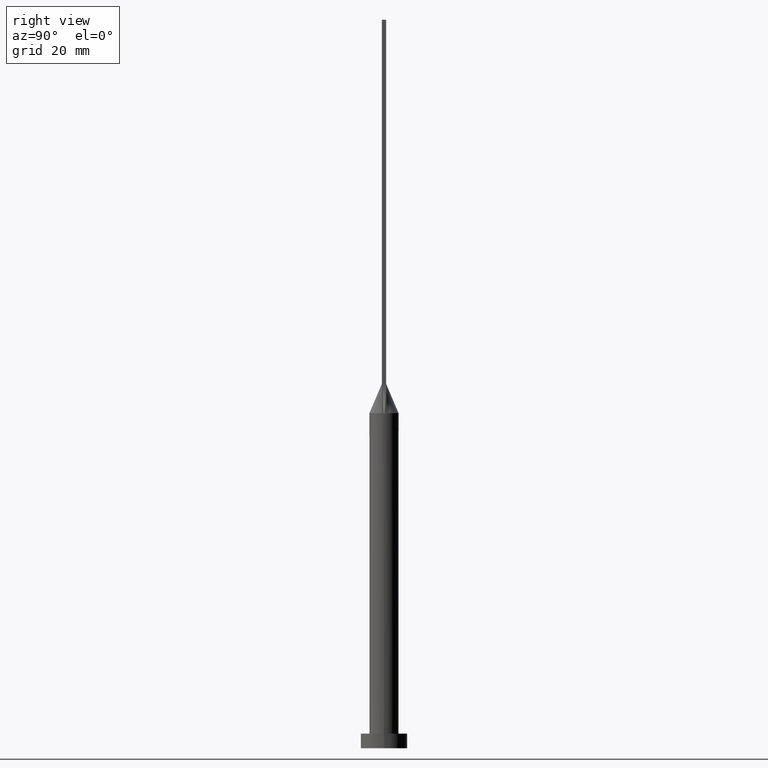
[diagram: clean part render]
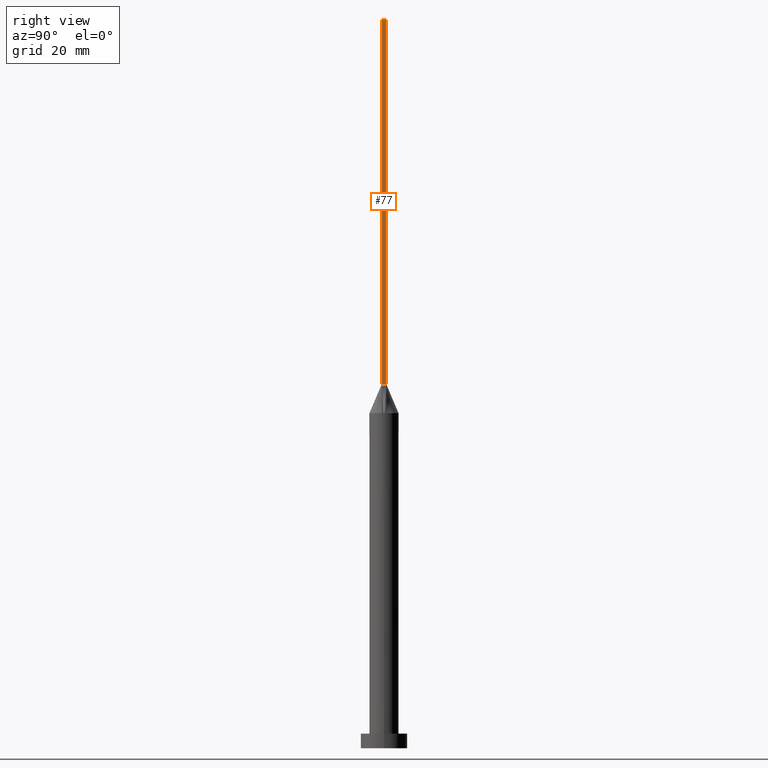
[diagram: same view with one face highlighted and labeled with its STEP entity id]
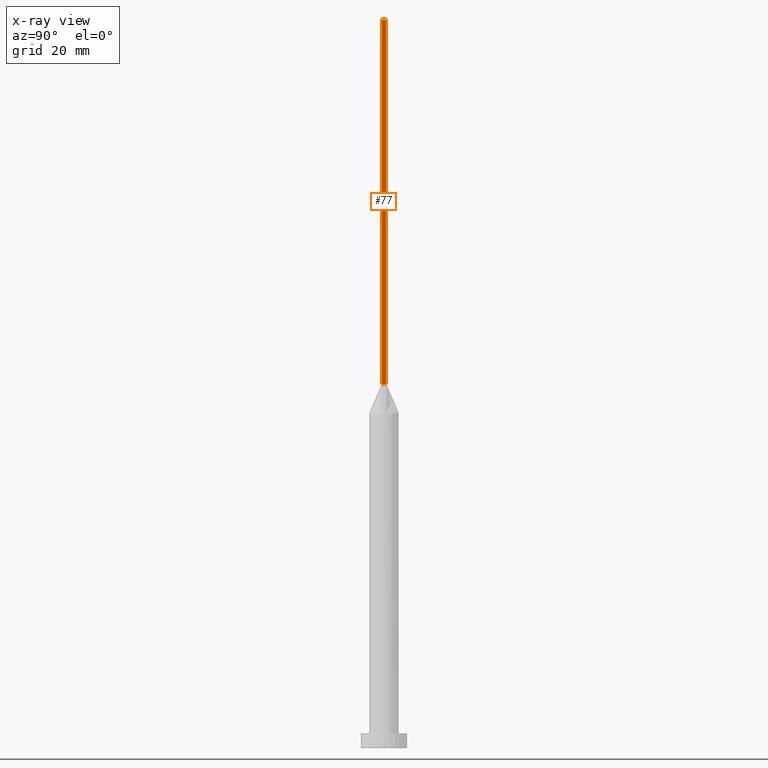
[diagram: x-ray of the same camera — body ghosted, the highlighted face saturated]
A machine part, right view. The second image highlights one B-rep face of the part: STEP entity #77.
The next image is the same camera in x-ray: the body ghosted, the highlighted face saturated — about 0% of this face is hidden behind the body in this view.
In plain terms, the highlighted planar face has unit normal (-1, 0, 0).
Its self-contained STEP definition (entity closure, byte-faithful):
#13 = ORIENTED_EDGE ( 'NONE', *, *, #565, .T. ) ;
#47 = CARTESIAN_POINT ( 'NONE',  ( 4.750000000000000000, -0.7499999999999997780, 250.0000000000000000 ) ) ;
#59 = EDGE_CURVE ( 'NONE', #584, #515, #524, .T. ) ;
#61 = VECTOR ( 'NONE', #245, 1000.000000000000000 ) ;
#77 = ADVANCED_FACE ( 'NONE', ( #334 ), #525, .F. ) ;
#79 = CARTESIAN_POINT ( 'NONE',  ( 4.750000000000000000, 0.7500000000000002220, 250.0000000000000000 ) ) ;
#81 = CARTESIAN_POINT ( 'NONE',  ( 4.750000000000000000, -0.7499999999999997780, 250.0000000000000000 ) ) ;
#101 = CARTESIAN_POINT ( 'NONE',  ( 4.750000000000000000, -0.7499999999999997780, 250.0000000000000000 ) ) ;
#177 = EDGE_CURVE ( 'NONE', #578, #584, #485, .T. ) ;
#195 = ORIENTED_EDGE ( 'NONE', *, *, #177, .F. ) ;
#200 = LINE ( 'NONE', #47, #61 ) ;
#240 = ORIENTED_EDGE ( 'NONE', *, *, #486, .T. ) ;
#245 = DIRECTION ( 'NONE',  ( -0.000000000000000000, -0.000000000000000000, -1.000000000000000000 ) ) ;
#259 = CARTESIAN_POINT ( 'NONE',  ( 4.750000000000000000, 0.7500000000000002220, 125.0000000000000000 ) ) ;
#278 = VECTOR ( 'NONE', #540, 1000.000000000000000 ) ;
#280 = DIRECTION ( 'NONE',  ( -0.000000000000000000, -0.000000000000000000, -1.000000000000000000 ) ) ;
#285 = DIRECTION ( 'NONE',  ( 0.000000000000000000, 0.000000000000000000, 1.000000000000000000 ) ) ;
#295 = LINE ( 'NONE', #259, #307 ) ;
#307 = VECTOR ( 'NONE', #438, 1000.000000000000000 ) ;
#313 = CARTESIAN_POINT ( 'NONE',  ( 4.750000000000000000, -0.7499999999999997780, 250.0000000000000000 ) ) ;
#333 = EDGE_LOOP ( 'NONE', ( #240, #379, #195, #13 ) ) ;
#334 = FACE_OUTER_BOUND ( 'NONE', #333, .T. ) ;
#379 = ORIENTED_EDGE ( 'NONE', *, *, #59, .F. ) ;
#397 = VECTOR ( 'NONE', #280, 1000.000000000000000 ) ;
#438 = DIRECTION ( 'NONE',  ( -0.000000000000000000, 1.000000000000000000, -0.000000000000000000 ) ) ;
#476 = DIRECTION ( 'NONE',  ( -1.000000000000000000, 0.000000000000000000, 0.000000000000000000 ) ) ;
#485 = LINE ( 'NONE', #101, #278 ) ;
#486 = EDGE_CURVE ( 'NONE', #604, #515, #295, .T. ) ;
#488 = CARTESIAN_POINT ( 'NONE',  ( 4.750000000000000000, 0.7500000000000002220, 125.0000000000000000 ) ) ;
#510 = CARTESIAN_POINT ( 'NONE',  ( 4.750000000000000000, -0.7499999999999997780, 125.0000000000000000 ) ) ;
#515 = VERTEX_POINT ( 'NONE', #488 ) ;
#524 = LINE ( 'NONE', #79, #397 ) ;
#525 = PLANE ( 'NONE',  #582 ) ;
#540 = DIRECTION ( 'NONE',  ( 0.000000000000000000, 1.000000000000000000, 0.000000000000000000 ) ) ;
#562 = CARTESIAN_POINT ( 'NONE',  ( 4.750000000000000000, 0.7500000000000002220, 250.0000000000000000 ) ) ;
#565 = EDGE_CURVE ( 'NONE', #578, #604, #200, .T. ) ;
#578 = VERTEX_POINT ( 'NONE', #313 ) ;
#582 = AXIS2_PLACEMENT_3D ( 'NONE', #81, #476, #285 ) ;
#584 = VERTEX_POINT ( 'NONE', #562 ) ;
#604 = VERTEX_POINT ( 'NONE', #510 ) ;